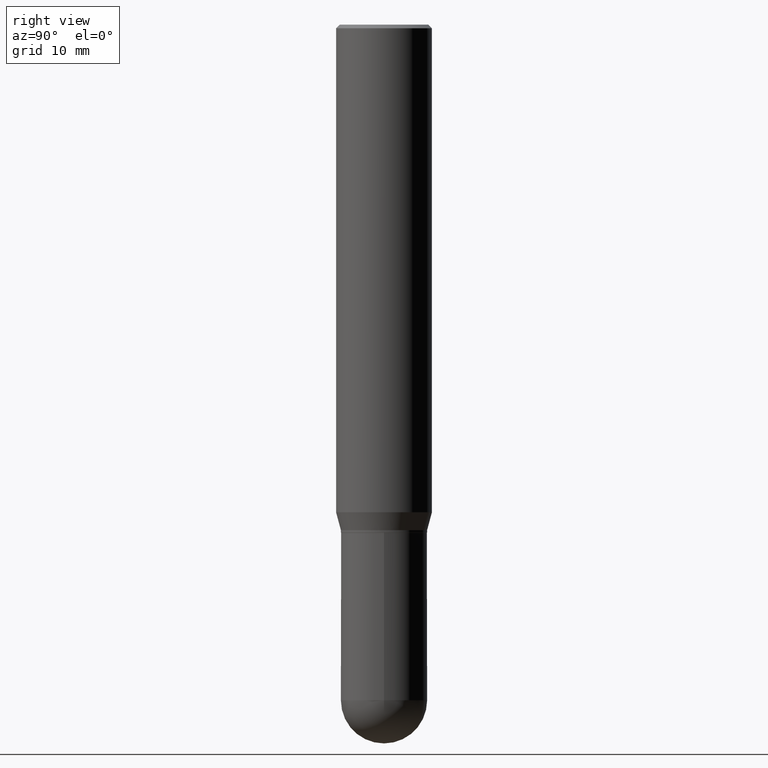
[diagram: clean part render]
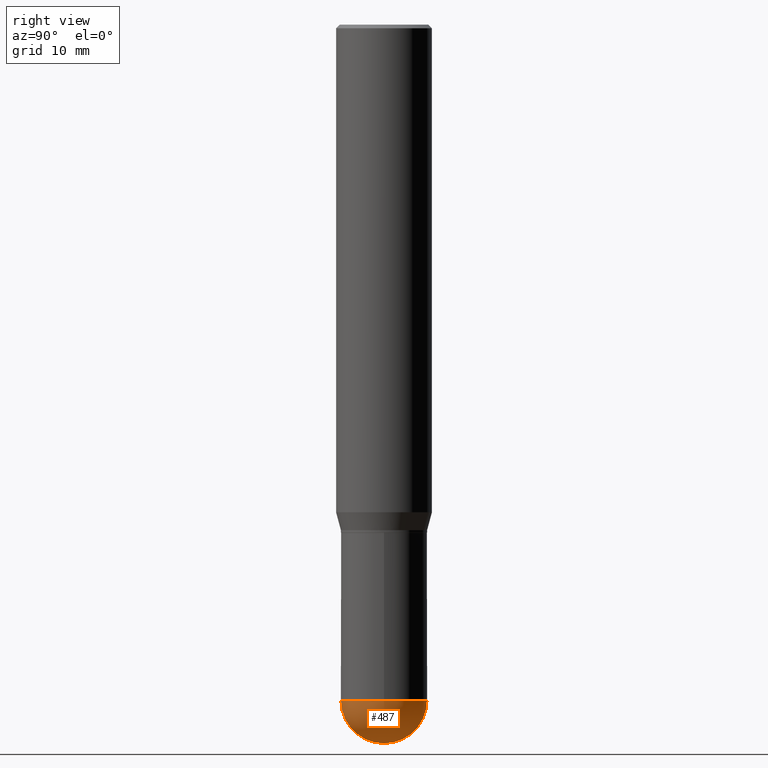
[diagram: same view with one face highlighted and labeled with its STEP entity id]
A machine part, right view. The second image highlights one B-rep face of the part: STEP entity #487.
In plain terms, the highlighted spherical surface has radius 4.4996 mm.
Its self-contained STEP definition (entity closure, byte-faithful):
#18 = CARTESIAN_POINT ( 'NONE',  ( 6.813022828238686978E-29, -9.654960234947156736E-15, -2.775649999999999729 ) ) ;
#24 = DIRECTION ( 'NONE',  ( 1.000000000000000000, -6.982962677686270655E-15, 0.000000000000000000 ) ) ;
#27 = VERTEX_POINT ( 'NONE', #207 ) ;
#61 = EDGE_CURVE ( 'NONE', #150, #139, #203, .T. ) ;
#65 = AXIS2_PLACEMENT_3D ( 'NONE', #145, #500, #182 ) ;
#68 = ORIENTED_EDGE ( 'NONE', *, *, #382, .F. ) ;
#71 = EDGE_LOOP ( 'NONE', ( #68, #157, #420, #231 ) ) ;
#139 = VERTEX_POINT ( 'NONE', #206 ) ;
#145 = CARTESIAN_POINT ( 'NONE',  ( 6.813022828238686978E-29, -9.654960234947156736E-15, -2.775649999999999729 ) ) ;
#150 = VERTEX_POINT ( 'NONE', #290 ) ;
#153 = DIRECTION ( 'NONE',  ( -1.000000000000000000, 6.982962677686265133E-15, -4.883557194083112340E-29 ) ) ;
#157 = ORIENTED_EDGE ( 'NONE', *, *, #455, .T. ) ;
#179 = AXIS2_PLACEMENT_3D ( 'NONE', #440, #439, #238 ) ;
#180 = AXIS2_PLACEMENT_3D ( 'NONE', #317, #493, #24 ) ;
#182 = DIRECTION ( 'NONE',  ( -7.105427357600999492E-15, -1.000000000000000000, 0.000000000000000000 ) ) ;
#184 = VERTEX_POINT ( 'NONE', #302 ) ;
#188 = FACE_OUTER_BOUND ( 'NONE', #71, .T. ) ;
#194 = CIRCLE ( 'NONE', #432, 0.1771500000000000574 ) ;
#203 = CIRCLE ( 'NONE', #179, 0.1771500000000000574 ) ;
#206 = CARTESIAN_POINT ( 'NONE',  ( 1.237031838352190236E-15, 0.1771499999999903430, -2.775650000000000173 ) ) ;
#207 = CARTESIAN_POINT ( 'NONE',  ( -1.258726456398949454E-15, -0.1771500000000097441, -2.775649999999999284 ) ) ;
#222 = SPHERICAL_SURFACE ( 'NONE', #391, 0.1771500000000000574 ) ;
#228 = DIRECTION ( 'NONE',  ( 6.982962677686264344E-15, 1.000000000000000000, 0.000000000000000000 ) ) ;
#231 = ORIENTED_EDGE ( 'NONE', *, *, #467, .F. ) ;
#238 = DIRECTION ( 'NONE',  ( 1.000000000000000000, -6.982962677686270655E-15, 0.000000000000000000 ) ) ;
#290 = CARTESIAN_POINT ( 'NONE',  ( 0.1771500000000000574, -9.725433982314104551E-15, -2.775649999999999729 ) ) ;
#302 = CARTESIAN_POINT ( 'NONE',  ( 7.253812262660790316E-29, -1.026262884509977305E-14, -2.952799999999999869 ) ) ;
#317 = CARTESIAN_POINT ( 'NONE',  ( 6.787765491887772680E-29, -9.691130178159974964E-15, -2.775649999999999729 ) ) ;
#380 = DIRECTION ( 'NONE',  ( 6.982962677686265133E-15, 1.000000000000000000, -3.084220145260245435E-15 ) ) ;
#382 = EDGE_CURVE ( 'NONE', #184, #27, #450, .T. ) ;
#384 = DIRECTION ( 'NONE',  ( 1.000000000000000000, -6.982962677686265922E-15, 4.883557194083112340E-29 ) ) ;
#391 = AXIS2_PLACEMENT_3D ( 'NONE', #18, #153, #380 ) ;
#420 = ORIENTED_EDGE ( 'NONE', *, *, #61, .F. ) ;
#421 = CARTESIAN_POINT ( 'NONE',  ( 6.813022828238686978E-29, -9.654960234947156736E-15, -2.775649999999999729 ) ) ;
#432 = AXIS2_PLACEMENT_3D ( 'NONE', #421, #384, #228 ) ;
#439 = DIRECTION ( 'NONE',  ( -2.445468806185136597E-29, 3.491481338843145583E-15, 1.000000000000000000 ) ) ;
#440 = CARTESIAN_POINT ( 'NONE',  ( 6.787765491887772680E-29, -9.691130178159974964E-15, -2.775649999999999729 ) ) ;
#450 = CIRCLE ( 'NONE', #65, 0.1771500000000000574 ) ;
#455 = EDGE_CURVE ( 'NONE', #184, #139, #194, .T. ) ;
#467 = EDGE_CURVE ( 'NONE', #27, #150, #496, .T. ) ;
#487 = ADVANCED_FACE ( 'NONE', ( #188 ), #222, .T. ) ;
#493 = DIRECTION ( 'NONE',  ( -2.445468806185136597E-29, 3.491481338843145583E-15, 1.000000000000000000 ) ) ;
#496 = CIRCLE ( 'NONE', #180, 0.1771500000000000574 ) ;
#500 = DIRECTION ( 'NONE',  ( -1.000000000000000000, 7.105427357601001070E-15, -4.926315508542082329E-29 ) ) ;